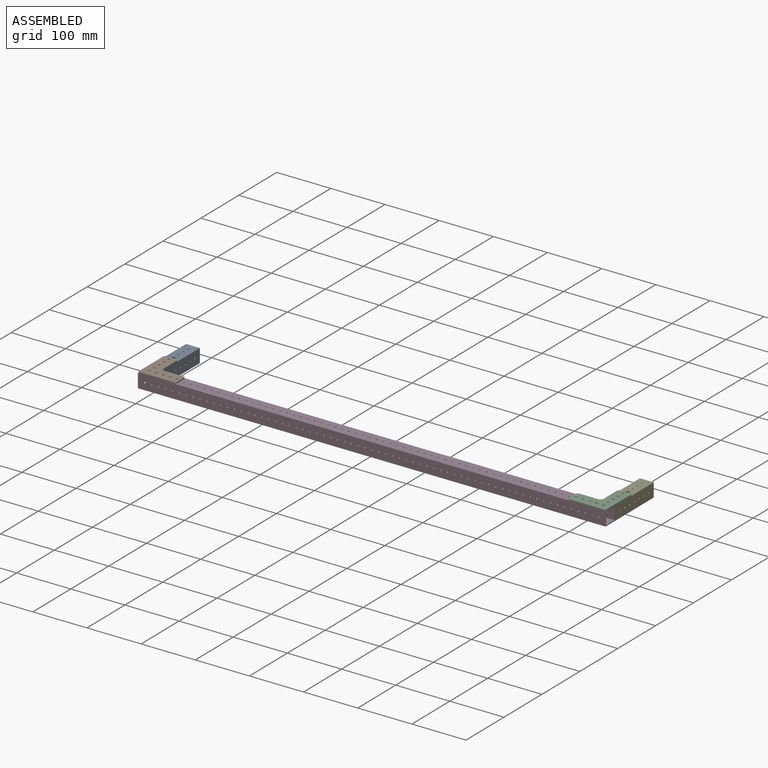
[diagram: assembled view]
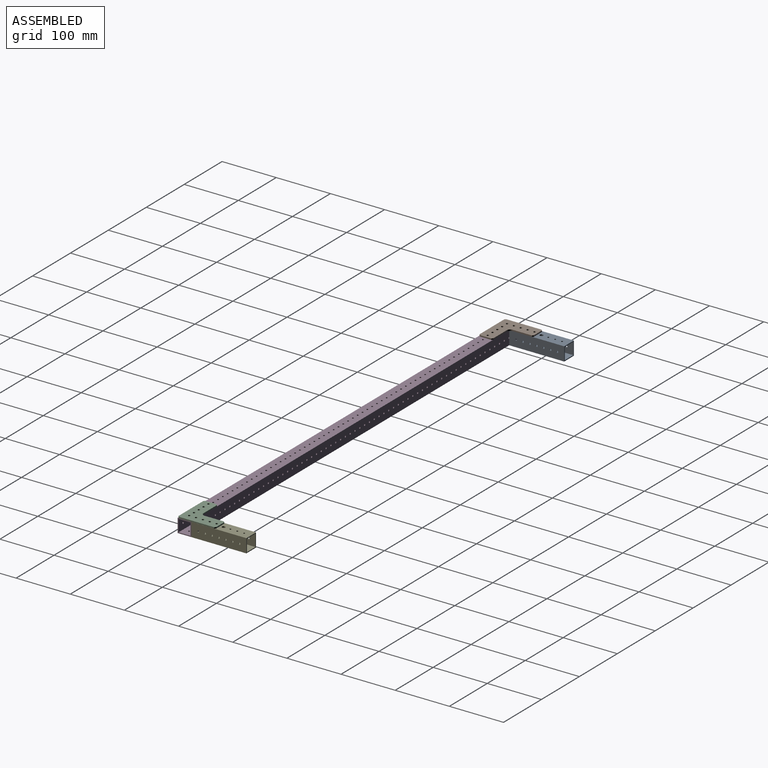
[diagram: assembled view, second angle]
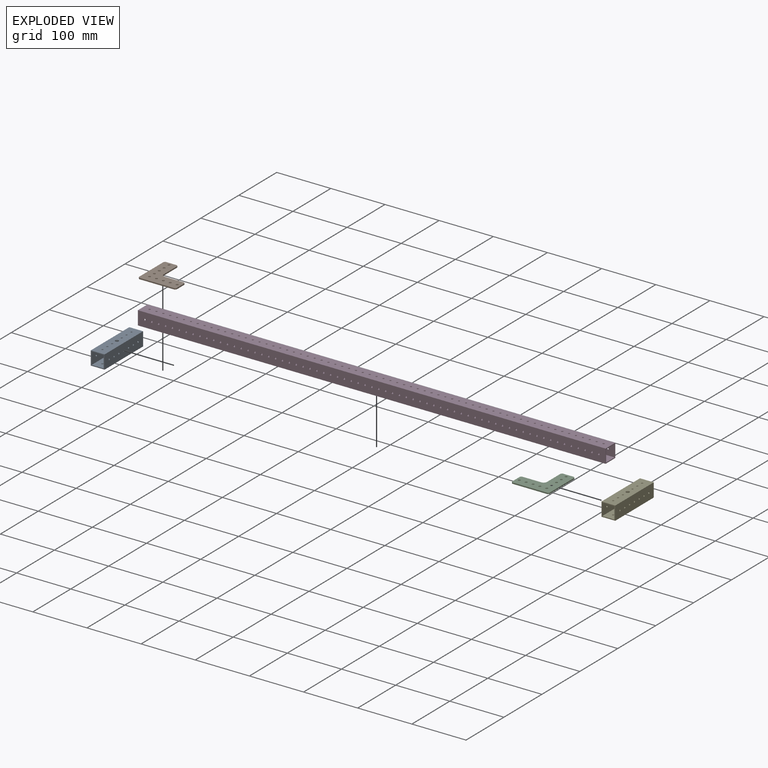
[diagram: exploded view]
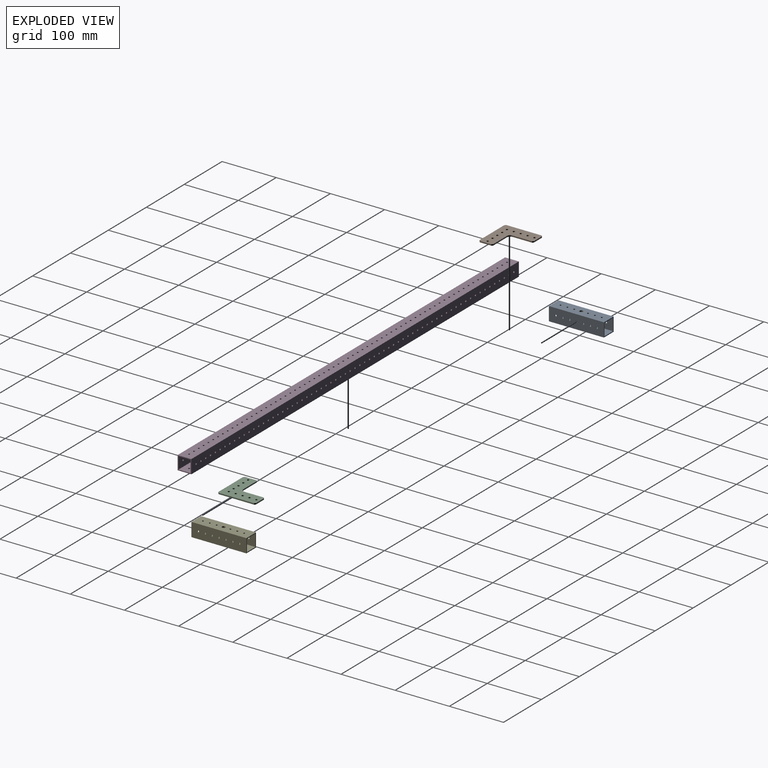
[diagram: exploded view, second angle]
ASSEMBLY  parts=5 mates=4
PART A: 38 faces, bbox 25.4x101.6x25.4 mm
  f0: cylinder r=1.59mm len=3.18mm, axis (1,0,0), area 15.8mm2, adj f23,f25
  f1: cylinder r=1.59mm len=3.18mm, axis (1,0,0), area 15.8mm2, adj f27,f29
  f2: cylinder r=1.59mm len=3.18mm, axis (1,0,0), area 15.8mm2, adj f23,f25
  f3: cylinder r=1.59mm len=3.18mm, axis (1,0,0), area 15.8mm2, adj f27,f29
  f4: cylinder r=1.59mm len=3.18mm, axis (1,0,0), area 15.8mm2, adj f23,f25
  f5: cylinder r=1.59mm len=3.18mm, axis (1,0,0), area 15.8mm2, adj f27,f29
  f6: cylinder r=1.59mm len=3.18mm, axis (1,0,0), area 15.8mm2, adj f23,f25
  f7: cylinder r=1.59mm len=3.18mm, axis (1,0,0), area 15.8mm2, adj f27,f29
  f8: cylinder r=1.59mm len=3.18mm, axis (1,0,0), area 15.8mm2, adj f23,f25
  f9: cylinder r=1.59mm len=3.18mm, axis (1,0,0), area 15.8mm2, adj f27,f29
  f10: cylinder r=1.59mm len=3.18mm, axis (1,0,0), area 15.8mm2, adj f23,f25
  f11: cylinder r=1.59mm len=3.18mm, axis (1,0,0), area 15.8mm2, adj f27,f29
  f12: cylinder r=1.59mm len=3.18mm, axis (0,0,1), area 15.8mm2, adj f24,f28
  f13: cylinder r=1.59mm len=3.18mm, axis (0,0,1), area 15.8mm2, adj f22,f26
  f14: cylinder r=1.59mm len=3.18mm, axis (0,0,1), area 15.8mm2, adj f24,f28
  f15: cylinder r=1.59mm len=3.18mm, axis (0,0,1), area 15.8mm2, adj f22,f26
  f16: cylinder r=1.59mm len=3.18mm, axis (0,0,1), area 15.8mm2, adj f24,f28
  f17: cylinder r=1.59mm len=3.18mm, axis (0,0,1), area 15.8mm2, adj f22,f26
  f18: cylinder r=1.59mm len=3.18mm, axis (0,0,1), area 15.8mm2, adj f24,f28
  f19: cylinder r=1.59mm len=3.18mm, axis (0,0,1), area 15.8mm2, adj f22,f26
  f20: cylinder r=1.59mm len=3.18mm, axis (0,0,1), area 15.8mm2, adj f24,f28
  f21: cylinder r=1.59mm len=3.18mm, axis (0,0,1), area 15.8mm2, adj f22,f26
  f22: plane 101.6x22.23mm, normal (0,0,-1), area 2178.9mm2, adj f13,f15,f17,f19,f21,f23,f29,f30
  f23: plane 101.6x22.23mm, normal (-1,0,0), area 2202.6mm2, adj f0,f2,f4,f6,f8,f10,f22,f24
  f24: plane 101.6x22.23mm, normal (0,0,1), area 2178.9mm2, adj f12,f14,f16,f18,f20,f23,f29,f30
  f25: plane 101.6x25.4mm, normal (1,0,0), area 2525.2mm2, adj f0,f2,f4,f6,f8,f10,f26,f28
  f26: plane 101.6x25.4mm, normal (0,0,1), area 2501.5mm2, adj f13,f15,f17,f19,f21,f25,f27,f30
  f27: plane 101.6x25.4mm, normal (-1,0,0), area 2525.2mm2, adj f1,f3,f5,f7,f9,f11,f26,f28
  f28: plane 101.6x25.4mm, normal (0,0,-1), area 2501.5mm2, adj f12,f14,f16,f18,f20,f25,f27,f30
  f29: plane 101.6x22.23mm, normal (1,0,0), area 2202.6mm2, adj f1,f3,f5,f7,f9,f11,f22,f24
  f30: plane 25.4x25.4mm, normal (0,-1,0), area 151.2mm2, adj f22,f23,f24,f25,f26,f27,f28,f29
  f31: plane 25.4x25.4mm, normal (0,1,0), area 151.2mm2, adj f22,f23,f24,f25,f26,f27,f28,f29
  f32: cylinder r=1.59mm len=3.18mm, axis (0,0,1), area 15.8mm2, adj f24,f28
  f33: cylinder r=1.59mm len=3.18mm, axis (0,0,1), area 15.8mm2, adj f22,f26
  f34: cylinder r=1.59mm len=3.18mm, axis (1,0,0), area 15.8mm2, adj f27,f29
  f35: cylinder r=1.59mm len=3.18mm, axis (1,0,0), area 15.8mm2, adj f23,f25
  f36: cylinder r=3.17mm len=6.35mm, axis (0,0,1), area 31.7mm2, adj f24,f28
  f37: cylinder r=3.17mm len=6.35mm, axis (0,0,1), area 31.7mm2, adj f22,f26
PART B: 23 faces, bbox 69.6x69.6x2.3 mm
  f0: cylinder r=2.07mm len=4.14mm, axis (0,0,-1), area 29.7mm2, adj f9,f10
  f1: cylinder r=2.07mm len=4.14mm, axis (0,0,-1), area 29.7mm2, adj f9,f10
  f2: cylinder r=2.07mm len=4.14mm, axis (0,0,-1), area 29.7mm2, adj f9,f10
  f3: cylinder r=2.07mm len=4.14mm, axis (0,0,-1), area 29.7mm2, adj f9,f10
  f4: cylinder r=2.07mm len=4.14mm, axis (0,0,-1), area 29.7mm2, adj f9,f10
  f5: cylinder r=2.07mm len=4.14mm, axis (0,0,-1), area 29.7mm2, adj f9,f10
  f6: cylinder r=2.07mm len=4.14mm, axis (0,0,-1), area 29.7mm2, adj f9,f10
  f7: cylinder r=2.07mm len=4.14mm, axis (0,0,-1), area 29.7mm2, adj f9,f10
  f8: cylinder r=2.07mm len=4.14mm, axis (0,0,-1), area 29.7mm2, adj f9,f10
  f9: plane 69.6x69.6mm, normal (0,0,1), area 2766.2mm2, adj f0,f1,f2,f3,f4,f5,f6,f7
  f10: plane 69.6x69.6mm, normal (0,0,-1), area 2766.2mm2, adj f0,f1,f2,f3,f4,f5,f6,f7
  f11: plane 65.28x2.29mm, normal (-1,0,0), area 149.2mm2, adj f9,f10,f19,f20
  f12: plane 21.08x2.29mm, normal (0,-1,0), area 48.2mm2, adj f9,f10,f20,f21
  f13: plane 21.08x2.29mm, normal (1,0,0), area 48.2mm2, adj f9,f10,f18,f22
  f14: plane 65.28x2.29mm, normal (0,1,0), area 149.2mm2, adj f9,f10,f18,f19
  f15: plane 35.69x2.29mm, normal (0,-1,0), area 81.6mm2, adj f9,f10,f17,f22
  f16: plane 35.69x2.29mm, normal (1,0,0), area 81.6mm2, adj f9,f10,f17,f21
  f17: cylinder r=6.35mm len=6.35mm, axis (0,0,1), area 22.8mm2, adj f9,f10,f15,f16
  f18: plane 2.29x2.16mm, normal (0.71,0.71,0), area 7mm2, adj f9,f10,f13,f14
  f19: plane 2.29x2.16mm, normal (-0.71,0.71,0), area 7mm2, adj f9,f10,f11,f14
  f20: plane 2.29x2.16mm, normal (-0.71,-0.71,0), area 7mm2, adj f9,f10,f11,f12
  f21: plane 2.29x2.16mm, normal (0.71,-0.71,0), area 7mm2, adj f9,f10,f12,f16
  f22: plane 2.29x2.16mm, normal (0.71,-0.71,0), area 7mm2, adj f9,f10,f13,f15
PART C: same geometry as B
PART D: 278 faces, bbox 25.4x863.6x25.4 mm
  f0: cylinder r=1.59mm len=3.18mm, axis (1,0,0), area 15.8mm2, adj f265,f267
  f1: cylinder r=1.59mm len=3.18mm, axis (1,0,0), area 15.8mm2, adj f269,f271
  f2: cylinder r=1.59mm len=3.18mm, axis (1,0,0), area 15.8mm2, adj f265,f267
  f3: cylinder r=1.59mm len=3.18mm, axis (1,0,0), area 15.8mm2, adj f269,f271
  f4: cylinder r=1.59mm len=3.18mm, axis (1,0,0), area 15.8mm2, adj f265,f267
  f5: cylinder r=1.59mm len=3.18mm, axis (1,0,0), area 15.8mm2, adj f269,f271
  f6: cylinder r=1.59mm len=3.18mm, axis (1,0,0), area 15.8mm2, adj f265,f267
  f7: cylinder r=1.59mm len=3.18mm, axis (1,0,0), area 15.8mm2, adj f269,f271
  f8: cylinder r=1.59mm len=3.18mm, axis (1,0,0), area 15.8mm2, adj f265,f267
  f9: cylinder r=1.59mm len=3.18mm, axis (1,0,0), area 15.8mm2, adj f269,f271
  f10: cylinder r=1.59mm len=3.18mm, axis (1,0,0), area 15.8mm2, adj f265,f267
  f11: cylinder r=1.59mm len=3.18mm, axis (1,0,0), area 15.8mm2, adj f269,f271
  f12: cylinder r=1.59mm len=3.18mm, axis (1,0,0), area 15.8mm2, adj f265,f267
  f13: cylinder r=1.59mm len=3.18mm, axis (1,0,0), area 15.8mm2, adj f269,f271
  f14: cylinder r=1.59mm len=3.18mm, axis (1,0,0), area 15.8mm2, adj f265,f267
  f15: cylinder r=1.59mm len=3.18mm, axis (1,0,0), area 15.8mm2, adj f269,f271
  f16: cylinder r=1.59mm len=3.18mm, axis (1,0,0), area 15.8mm2, adj f265,f267
  f17: cylinder r=1.59mm len=3.18mm, axis (1,0,0), area 15.8mm2, adj f269,f271
  f18: cylinder r=1.59mm len=3.18mm, axis (1,0,0), area 15.8mm2, adj f265,f267
  f19: cylinder r=1.59mm len=3.18mm, axis (1,0,0), area 15.8mm2, adj f269,f271
  f20: cylinder r=1.59mm len=3.18mm, axis (1,0,0), area 15.8mm2, adj f265,f267
  f21: cylinder r=1.59mm len=3.18mm, axis (1,0,0), area 15.8mm2, adj f269,f271
  f22: cylinder r=1.59mm len=3.18mm, axis (1,0,0), area 15.8mm2, adj f265,f267
  f23: cylinder r=1.59mm len=3.18mm, axis (1,0,0), area 15.8mm2, adj f269,f271
  f24: cylinder r=1.59mm len=3.18mm, axis (1,0,0), area 15.8mm2, adj f265,f267
  f25: cylinder r=1.59mm len=3.18mm, axis (1,0,0), area 15.8mm2, adj f269,f271
  f26: cylinder r=1.59mm len=3.18mm, axis (1,0,0), area 15.8mm2, adj f265,f267
  f27: cylinder r=1.59mm len=3.18mm, axis (1,0,0), area 15.8mm2, adj f269,f271
  f28: cylinder r=1.59mm len=3.18mm, axis (1,0,0), area 15.8mm2, adj f265,f267
  f29: cylinder r=1.59mm len=3.18mm, axis (1,0,0), area 15.8mm2, adj f269,f271
  f30: cylinder r=1.59mm len=3.18mm, axis (1,0,0), area 15.8mm2, adj f265,f267
  f31: cylinder r=1.59mm len=3.18mm, axis (1,0,0), area 15.8mm2, adj f269,f271
  f32: cylinder r=1.59mm len=3.18mm, axis (1,0,0), area 15.8mm2, adj f265,f267
  f33: cylinder r=1.59mm len=3.18mm, axis (1,0,0), area 15.8mm2, adj f269,f271
  f34: cylinder r=1.59mm len=3.18mm, axis (1,0,0), area 15.8mm2, adj f265,f267
  f35: cylinder r=1.59mm len=3.18mm, axis (1,0,0), area 15.8mm2, adj f269,f271
  f36: cylinder r=1.59mm len=3.18mm, axis (1,0,0), area 15.8mm2, adj f265,f267
  f37: cylinder r=1.59mm len=3.18mm, axis (1,0,0), area 15.8mm2, adj f269,f271
  f38: cylinder r=1.59mm len=3.18mm, axis (1,0,0), area 15.8mm2, adj f265,f267
  f39: cylinder r=1.59mm len=3.18mm, axis (1,0,0), area 15.8mm2, adj f269,f271
  f40: cylinder r=1.59mm len=3.18mm, axis (1,0,0), area 15.8mm2, adj f265,f267
  f41: cylinder r=1.59mm len=3.18mm, axis (1,0,0), area 15.8mm2, adj f269,f271
  f42: cylinder r=1.59mm len=3.18mm, axis (1,0,0), area 15.8mm2, adj f265,f267
  f43: cylinder r=1.59mm len=3.18mm, axis (1,0,0), area 15.8mm2, adj f269,f271
  f44: cylinder r=1.59mm len=3.18mm, axis (1,0,0), area 15.8mm2, adj f265,f267
  f45: cylinder r=1.59mm len=3.18mm, axis (1,0,0), area 15.8mm2, adj f269,f271
  f46: cylinder r=1.59mm len=3.18mm, axis (1,0,0), area 15.8mm2, adj f265,f267
  f47: cylinder r=1.59mm len=3.18mm, axis (1,0,0), area 15.8mm2, adj f269,f271
  f48: cylinder r=1.59mm len=3.18mm, axis (1,0,0), area 15.8mm2, adj f265,f267
  f49: cylinder r=1.59mm len=3.18mm, axis (1,0,0), area 15.8mm2, adj f269,f271
  f50: cylinder r=1.59mm len=3.18mm, axis (1,0,0), area 15.8mm2, adj f265,f267
  f51: cylinder r=1.59mm len=3.18mm, axis (1,0,0), area 15.8mm2, adj f269,f271
  f52: cylinder r=1.59mm len=3.18mm, axis (1,0,0), area 15.8mm2, adj f265,f267
  f53: cylinder r=1.59mm len=3.18mm, axis (1,0,0), area 15.8mm2, adj f269,f271
  f54: cylinder r=1.59mm len=3.18mm, axis (1,0,0), area 15.8mm2, adj f265,f267
  f55: cylinder r=1.59mm len=3.18mm, axis (1,0,0), area 15.8mm2, adj f269,f271
  f56: cylinder r=1.59mm len=3.18mm, axis (1,0,0), area 15.8mm2, adj f265,f267
  f57: cylinder r=1.59mm len=3.18mm, axis (1,0,0), area 15.8mm2, adj f269,f271
  f58: cylinder r=1.59mm len=3.18mm, axis (1,0,0), area 15.8mm2, adj f265,f267
  f59: cylinder r=1.59mm len=3.18mm, axis (1,0,0), area 15.8mm2, adj f269,f271
  f60: cylinder r=1.59mm len=3.18mm, axis (1,0,0), area 15.8mm2, adj f265,f267
  f61: cylinder r=1.59mm len=3.18mm, axis (1,0,0), area 15.8mm2, adj f269,f271
  f62: cylinder r=1.59mm len=3.18mm, axis (1,0,0), area 15.8mm2, adj f265,f267
  f63: cylinder r=1.59mm len=3.18mm, axis (1,0,0), area 15.8mm2, adj f269,f271
  f64: cylinder r=1.59mm len=3.18mm, axis (1,0,0), area 15.8mm2, adj f265,f267
  f65: cylinder r=1.59mm len=3.18mm, axis (1,0,0), area 15.8mm2, adj f269,f271
  f66: cylinder r=1.59mm len=3.18mm, axis (1,0,0), area 15.8mm2, adj f265,f267
  f67: cylinder r=1.59mm len=3.18mm, axis (1,0,0), area 15.8mm2, adj f269,f271
  f68: cylinder r=1.59mm len=3.18mm, axis (1,0,0), area 15.8mm2, adj f265,f267
  f69: cylinder r=1.59mm len=3.18mm, axis (1,0,0), area 15.8mm2, adj f269,f271
  f70: cylinder r=1.59mm len=3.18mm, axis (1,0,0), area 15.8mm2, adj f265,f267
  f71: cylinder r=1.59mm len=3.18mm, axis (1,0,0), area 15.8mm2, adj f269,f271
  f72: cylinder r=1.59mm len=3.18mm, axis (1,0,0), area 15.8mm2, adj f265,f267
  f73: cylinder r=1.59mm len=3.18mm, axis (1,0,0), area 15.8mm2, adj f269,f271
  f74: cylinder r=1.59mm len=3.18mm, axis (1,0,0), area 15.8mm2, adj f265,f267
  f75: cylinder r=1.59mm len=3.18mm, axis (1,0,0), area 15.8mm2, adj f269,f271
  f76: cylinder r=1.59mm len=3.18mm, axis (1,0,0), area 15.8mm2, adj f265,f267
  f77: cylinder r=1.59mm len=3.18mm, axis (1,0,0), area 15.8mm2, adj f269,f271
  f78: cylinder r=1.59mm len=3.18mm, axis (1,0,0), area 15.8mm2, adj f265,f267
  f79: cylinder r=1.59mm len=3.18mm, axis (1,0,0), area 15.8mm2, adj f269,f271
  f80: cylinder r=1.59mm len=3.18mm, axis (1,0,0), area 15.8mm2, adj f265,f267
  f81: cylinder r=1.59mm len=3.18mm, axis (1,0,0), area 15.8mm2, adj f269,f271
  f82: cylinder r=1.59mm len=3.18mm, axis (1,0,0), area 15.8mm2, adj f265,f267
  f83: cylinder r=1.59mm len=3.18mm, axis (1,0,0), area 15.8mm2, adj f269,f271
  f84: cylinder r=1.59mm len=3.18mm, axis (1,0,0), area 15.8mm2, adj f265,f267
  f85: cylinder r=1.59mm len=3.18mm, axis (1,0,0), area 15.8mm2, adj f269,f271
  f86: cylinder r=1.59mm len=3.18mm, axis (1,0,0), area 15.8mm2, adj f265,f267
  f87: cylinder r=1.59mm len=3.18mm, axis (1,0,0), area 15.8mm2, adj f269,f271
  f88: cylinder r=1.59mm len=3.18mm, axis (1,0,0), area 15.8mm2, adj f265,f267
  f89: cylinder r=1.59mm len=3.18mm, axis (1,0,0), area 15.8mm2, adj f269,f271
  f90: cylinder r=1.59mm len=3.18mm, axis (1,0,0), area 15.8mm2, adj f265,f267
  f91: cylinder r=1.59mm len=3.18mm, axis (1,0,0), area 15.8mm2, adj f269,f271
  f92: cylinder r=1.59mm len=3.18mm, axis (1,0,0), area 15.8mm2, adj f265,f267
  f93: cylinder r=1.59mm len=3.18mm, axis (1,0,0), area 15.8mm2, adj f269,f271
  f94: cylinder r=1.59mm len=3.18mm, axis (1,0,0), area 15.8mm2, adj f265,f267
  f95: cylinder r=1.59mm len=3.18mm, axis (1,0,0), area 15.8mm2, adj f269,f271
  f96: cylinder r=1.59mm len=3.18mm, axis (1,0,0), area 15.8mm2, adj f265,f267
  f97: cylinder r=1.59mm len=3.18mm, axis (1,0,0), area 15.8mm2, adj f269,f271
  f98: cylinder r=1.59mm len=3.18mm, axis (1,0,0), area 15.8mm2, adj f265,f267
  f99: cylinder r=1.59mm len=3.18mm, axis (1,0,0), area 15.8mm2, adj f269,f271
  f100: cylinder r=1.59mm len=3.18mm, axis (1,0,0), area 15.8mm2, adj f265,f267
  f101: cylinder r=1.59mm len=3.18mm, axis (1,0,0), area 15.8mm2, adj f269,f271
  f102: cylinder r=1.59mm len=3.18mm, axis (1,0,0), area 15.8mm2, adj f265,f267
  f103: cylinder r=1.59mm len=3.18mm, axis (1,0,0), area 15.8mm2, adj f269,f271
  f104: cylinder r=1.59mm len=3.18mm, axis (1,0,0), area 15.8mm2, adj f265,f267
  f105: cylinder r=1.59mm len=3.18mm, axis (1,0,0), area 15.8mm2, adj f269,f271
  f106: cylinder r=1.59mm len=3.18mm, axis (1,0,0), area 15.8mm2, adj f265,f267
  f107: cylinder r=1.59mm len=3.18mm, axis (1,0,0), area 15.8mm2, adj f269,f271
  f108: cylinder r=1.59mm len=3.18mm, axis (1,0,0), area 15.8mm2, adj f265,f267
  f109: cylinder r=1.59mm len=3.18mm, axis (1,0,0), area 15.8mm2, adj f269,f271
  f110: cylinder r=1.59mm len=3.18mm, axis (1,0,0), area 15.8mm2, adj f265,f267
  f111: cylinder r=1.59mm len=3.18mm, axis (1,0,0), area 15.8mm2, adj f269,f271
  f112: cylinder r=1.59mm len=3.18mm, axis (1,0,0), area 15.8mm2, adj f265,f267
  f113: cylinder r=1.59mm len=3.18mm, axis (1,0,0), area 15.8mm2, adj f269,f271
  f114: cylinder r=1.59mm len=3.18mm, axis (1,0,0), area 15.8mm2, adj f265,f267
  f115: cylinder r=1.59mm len=3.18mm, axis (1,0,0), area 15.8mm2, adj f269,f271
  f116: cylinder r=1.59mm len=3.18mm, axis (1,0,0), area 15.8mm2, adj f265,f267
  f117: cylinder r=1.59mm len=3.18mm, axis (1,0,0), area 15.8mm2, adj f269,f271
  f118: cylinder r=1.59mm len=3.18mm, axis (1,0,0), area 15.8mm2, adj f265,f267
  f119: cylinder r=1.59mm len=3.18mm, axis (1,0,0), area 15.8mm2, adj f269,f271
  f120: cylinder r=1.59mm len=3.18mm, axis (1,0,0), area 15.8mm2, adj f265,f267
  f121: cylinder r=1.59mm len=3.18mm, axis (1,0,0), area 15.8mm2, adj f269,f271
  f122: cylinder r=1.59mm len=3.18mm, axis (1,0,0), area 15.8mm2, adj f265,f267
  f123: cylinder r=1.59mm len=3.18mm, axis (1,0,0), area 15.8mm2, adj f269,f271
  f124: cylinder r=1.59mm len=3.18mm, axis (1,0,0), area 15.8mm2, adj f265,f267
  f125: cylinder r=1.59mm len=3.18mm, axis (1,0,0), area 15.8mm2, adj f269,f271
  f126: cylinder r=1.59mm len=3.18mm, axis (1,0,0), area 15.8mm2, adj f265,f267
  f127: cylinder r=1.59mm len=3.18mm, axis (1,0,0), area 15.8mm2, adj f269,f271
  f128: cylinder r=1.59mm len=3.18mm, axis (1,0,0), area 15.8mm2, adj f265,f267
  f129: cylinder r=1.59mm len=3.18mm, axis (1,0,0), area 15.8mm2, adj f269,f271
  f130: cylinder r=1.59mm len=3.18mm, axis (1,0,0), area 15.8mm2, adj f265,f267
  f131: cylinder r=1.59mm len=3.18mm, axis (1,0,0), area 15.8mm2, adj f269,f271
  f132: cylinder r=1.59mm len=3.18mm, axis (0,0,1), area 15.8mm2, adj f266,f270
  f133: cylinder r=1.59mm len=3.18mm, axis (0,0,1), area 15.8mm2, adj f264,f268
  f134: cylinder r=1.59mm len=3.18mm, axis (0,0,1), area 15.8mm2, adj f266,f270
  f135: cylinder r=1.59mm len=3.18mm, axis (0,0,1), area 15.8mm2, adj f264,f268
  f136: cylinder r=1.59mm len=3.18mm, axis (0,0,1), area 15.8mm2, adj f266,f270
  f137: cylinder r=1.59mm len=3.18mm, axis (0,0,1), area 15.8mm2, adj f264,f268
  f138: cylinder r=1.59mm len=3.18mm, axis (0,0,1), area 15.8mm2, adj f266,f270
  f139: cylinder r=1.59mm len=3.18mm, axis (0,0,1), area 15.8mm2, adj f264,f268
  f140: cylinder r=1.59mm len=3.18mm, axis (0,0,1), area 15.8mm2, adj f266,f270
  f141: cylinder r=1.59mm len=3.18mm, axis (0,0,1), area 15.8mm2, adj f264,f268
  f142: cylinder r=1.59mm len=3.18mm, axis (0,0,1), area 15.8mm2, adj f266,f270
  f143: cylinder r=1.59mm len=3.18mm, axis (0,0,1), area 15.8mm2, adj f264,f268
  f144: cylinder r=1.59mm len=3.18mm, axis (0,0,1), area 15.8mm2, adj f266,f270
  f145: cylinder r=1.59mm len=3.18mm, axis (0,0,1), area 15.8mm2, adj f264,f268
  f146: cylinder r=1.59mm len=3.18mm, axis (0,0,1), area 15.8mm2, adj f266,f270
  f147: cylinder r=1.59mm len=3.18mm, axis (0,0,1), area 15.8mm2, adj f264,f268
  f148: cylinder r=1.59mm len=3.18mm, axis (0,0,1), area 15.8mm2, adj f266,f270
  f149: cylinder r=1.59mm len=3.18mm, axis (0,0,1), area 15.8mm2, adj f264,f268
  f150: cylinder r=1.59mm len=3.18mm, axis (0,0,1), area 15.8mm2, adj f266,f270
  f151: cylinder r=1.59mm len=3.18mm, axis (0,0,1), area 15.8mm2, adj f264,f268
  f152: cylinder r=1.59mm len=3.18mm, axis (0,0,1), area 15.8mm2, adj f266,f270
  f153: cylinder r=1.59mm len=3.18mm, axis (0,0,1), area 15.8mm2, adj f264,f268
  f154: cylinder r=1.59mm len=3.18mm, axis (0,0,1), area 15.8mm2, adj f266,f270
  f155: cylinder r=1.59mm len=3.18mm, axis (0,0,1), area 15.8mm2, adj f264,f268
  f156: cylinder r=1.59mm len=3.18mm, axis (0,0,1), area 15.8mm2, adj f266,f270
  f157: cylinder r=1.59mm len=3.18mm, axis (0,0,1), area 15.8mm2, adj f264,f268
  f158: cylinder r=1.59mm len=3.18mm, axis (0,0,1), area 15.8mm2, adj f266,f270
  f159: cylinder r=1.59mm len=3.18mm, axis (0,0,1), area 15.8mm2, adj f264,f268
  f160: cylinder r=1.59mm len=3.18mm, axis (0,0,1), area 15.8mm2, adj f266,f270
  f161: cylinder r=1.59mm len=3.18mm, axis (0,0,1), area 15.8mm2, adj f264,f268
  f162: cylinder r=1.59mm len=3.18mm, axis (0,0,1), area 15.8mm2, adj f266,f270
  f163: cylinder r=1.59mm len=3.18mm, axis (0,0,1), area 15.8mm2, adj f264,f268
  f164: cylinder r=1.59mm len=3.18mm, axis (0,0,1), area 15.8mm2, adj f266,f270
  f165: cylinder r=1.59mm len=3.18mm, axis (0,0,1), area 15.8mm2, adj f264,f268
  f166: cylinder r=1.59mm len=3.18mm, axis (0,0,1), area 15.8mm2, adj f266,f270
  f167: cylinder r=1.59mm len=3.18mm, axis (0,0,1), area 15.8mm2, adj f264,f268
  f168: cylinder r=1.59mm len=3.18mm, axis (0,0,1), area 15.8mm2, adj f266,f270
  f169: cylinder r=1.59mm len=3.18mm, axis (0,0,1), area 15.8mm2, adj f264,f268
  f170: cylinder r=1.59mm len=3.18mm, axis (0,0,1), area 15.8mm2, adj f266,f270
  f171: cylinder r=1.59mm len=3.18mm, axis (0,0,1), area 15.8mm2, adj f264,f268
  f172: cylinder r=1.59mm len=3.18mm, axis (0,0,1), area 15.8mm2, adj f266,f270
  f173: cylinder r=1.59mm len=3.18mm, axis (0,0,1), area 15.8mm2, adj f264,f268
  f174: cylinder r=1.59mm len=3.18mm, axis (0,0,1), area 15.8mm2, adj f266,f270
  f175: cylinder r=1.59mm len=3.18mm, axis (0,0,1), area 15.8mm2, adj f264,f268
  f176: cylinder r=1.59mm len=3.18mm, axis (0,0,1), area 15.8mm2, adj f266,f270
  f177: cylinder r=1.59mm len=3.18mm, axis (0,0,1), area 15.8mm2, adj f264,f268
  f178: cylinder r=1.59mm len=3.18mm, axis (0,0,1), area 15.8mm2, adj f266,f270
  f179: cylinder r=1.59mm len=3.18mm, axis (0,0,1), area 15.8mm2, adj f264,f268
  f180: cylinder r=1.59mm len=3.18mm, axis (0,0,1), area 15.8mm2, adj f266,f270
  f181: cylinder r=1.59mm len=3.18mm, axis (0,0,1), area 15.8mm2, adj f264,f268
  f182: cylinder r=1.59mm len=3.18mm, axis (0,0,1), area 15.8mm2, adj f266,f270
  f183: cylinder r=1.59mm len=3.18mm, axis (0,0,1), area 15.8mm2, adj f264,f268
  f184: cylinder r=1.59mm len=3.18mm, axis (0,0,1), area 15.8mm2, adj f266,f270
  f185: cylinder r=1.59mm len=3.18mm, axis (0,0,1), area 15.8mm2, adj f264,f268
  f186: cylinder r=1.59mm len=3.18mm, axis (0,0,1), area 15.8mm2, adj f266,f270
  f187: cylinder r=1.59mm len=3.18mm, axis (0,0,1), area 15.8mm2, adj f264,f268
  f188: cylinder r=1.59mm len=3.18mm, axis (0,0,1), area 15.8mm2, adj f266,f270
  f189: cylinder r=1.59mm len=3.18mm, axis (0,0,1), area 15.8mm2, adj f264,f268
  f190: cylinder r=1.59mm len=3.18mm, axis (0,0,1), area 15.8mm2, adj f266,f270
  f191: cylinder r=1.59mm len=3.18mm, axis (0,0,1), area 15.8mm2, adj f264,f268
  f192: cylinder r=1.59mm len=3.18mm, axis (0,0,1), area 15.8mm2, adj f266,f270
  f193: cylinder r=1.59mm len=3.18mm, axis (0,0,1), area 15.8mm2, adj f264,f268
  f194: cylinder r=1.59mm len=3.18mm, axis (0,0,1), area 15.8mm2, adj f266,f270
  f195: cylinder r=1.59mm len=3.18mm, axis (0,0,1), area 15.8mm2, adj f264,f268
  f196: cylinder r=1.59mm len=3.18mm, axis (0,0,1), area 15.8mm2, adj f266,f270
  f197: cylinder r=1.59mm len=3.18mm, axis (0,0,1), area 15.8mm2, adj f264,f268
  f198: cylinder r=1.59mm len=3.18mm, axis (0,0,1), area 15.8mm2, adj f266,f270
  f199: cylinder r=1.59mm len=3.18mm, axis (0,0,1), area 15.8mm2, adj f264,f268
  f200: cylinder r=1.59mm len=3.18mm, axis (0,0,1), area 15.8mm2, adj f266,f270
  f201: cylinder r=1.59mm len=3.18mm, axis (0,0,1), area 15.8mm2, adj f264,f268
  f202: cylinder r=1.59mm len=3.18mm, axis (0,0,1), area 15.8mm2, adj f266,f270
  f203: cylinder r=1.59mm len=3.18mm, axis (0,0,1), area 15.8mm2, adj f264,f268
  f204: cylinder r=1.59mm len=3.18mm, axis (0,0,1), area 15.8mm2, adj f266,f270
  f205: cylinder r=1.59mm len=3.18mm, axis (0,0,1), area 15.8mm2, adj f264,f268
  f206: cylinder r=1.59mm len=3.18mm, axis (0,0,1), area 15.8mm2, adj f266,f270
  f207: cylinder r=1.59mm len=3.18mm, axis (0,0,1), area 15.8mm2, adj f264,f268
  f208: cylinder r=1.59mm len=3.18mm, axis (0,0,1), area 15.8mm2, adj f266,f270
  f209: cylinder r=1.59mm len=3.18mm, axis (0,0,1), area 15.8mm2, adj f264,f268
  f210: cylinder r=1.59mm len=3.18mm, axis (0,0,1), area 15.8mm2, adj f266,f270
  f211: cylinder r=1.59mm len=3.18mm, axis (0,0,1), area 15.8mm2, adj f264,f268
  f212: cylinder r=1.59mm len=3.18mm, axis (0,0,1), area 15.8mm2, adj f266,f270
  f213: cylinder r=1.59mm len=3.18mm, axis (0,0,1), area 15.8mm2, adj f264,f268
  f214: cylinder r=1.59mm len=3.18mm, axis (0,0,1), area 15.8mm2, adj f266,f270
  f215: cylinder r=1.59mm len=3.18mm, axis (0,0,1), area 15.8mm2, adj f264,f268
  f216: cylinder r=1.59mm len=3.18mm, axis (0,0,1), area 15.8mm2, adj f266,f270
  f217: cylinder r=1.59mm len=3.18mm, axis (0,0,1), area 15.8mm2, adj f264,f268
  f218: cylinder r=1.59mm len=3.18mm, axis (0,0,1), area 15.8mm2, adj f266,f270
  f219: cylinder r=1.59mm len=3.18mm, axis (0,0,1), area 15.8mm2, adj f264,f268
  f220: cylinder r=1.59mm len=3.18mm, axis (0,0,1), area 15.8mm2, adj f266,f270
  f221: cylinder r=1.59mm len=3.18mm, axis (0,0,1), area 15.8mm2, adj f264,f268
  f222: cylinder r=1.59mm len=3.18mm, axis (0,0,1), area 15.8mm2, adj f266,f270
  f223: cylinder r=1.59mm len=3.18mm, axis (0,0,1), area 15.8mm2, adj f264,f268
  f224: cylinder r=1.59mm len=3.18mm, axis (0,0,1), area 15.8mm2, adj f266,f270
  f225: cylinder r=1.59mm len=3.18mm, axis (0,0,1), area 15.8mm2, adj f264,f268
  f226: cylinder r=1.59mm len=3.18mm, axis (0,0,1), area 15.8mm2, adj f266,f270
  f227: cylinder r=1.59mm len=3.18mm, axis (0,0,1), area 15.8mm2, adj f264,f268
  f228: cylinder r=1.59mm len=3.18mm, axis (0,0,1), area 15.8mm2, adj f266,f270
  f229: cylinder r=1.59mm len=3.18mm, axis (0,0,1), area 15.8mm2, adj f264,f268
  f230: cylinder r=1.59mm len=3.18mm, axis (0,0,1), area 15.8mm2, adj f266,f270
  f231: cylinder r=1.59mm len=3.18mm, axis (0,0,1), area 15.8mm2, adj f264,f268
  f232: cylinder r=1.59mm len=3.18mm, axis (0,0,1), area 15.8mm2, adj f266,f270
  f233: cylinder r=1.59mm len=3.18mm, axis (0,0,1), area 15.8mm2, adj f264,f268
  f234: cylinder r=1.59mm len=3.18mm, axis (0,0,1), area 15.8mm2, adj f266,f270
  f235: cylinder r=1.59mm len=3.18mm, axis (0,0,1), area 15.8mm2, adj f264,f268
  f236: cylinder r=1.59mm len=3.18mm, axis (0,0,1), area 15.8mm2, adj f266,f270
  f237: cylinder r=1.59mm len=3.18mm, axis (0,0,1), area 15.8mm2, adj f264,f268
  f238: cylinder r=1.59mm len=3.18mm, axis (0,0,1), area 15.8mm2, adj f266,f270
  f239: cylinder r=1.59mm len=3.18mm, axis (0,0,1), area 15.8mm2, adj f264,f268
  f240: cylinder r=1.59mm len=3.18mm, axis (0,0,1), area 15.8mm2, adj f266,f270
  f241: cylinder r=1.59mm len=3.18mm, axis (0,0,1), area 15.8mm2, adj f264,f268
  f242: cylinder r=1.59mm len=3.18mm, axis (0,0,1), area 15.8mm2, adj f266,f270
  f243: cylinder r=1.59mm len=3.18mm, axis (0,0,1), area 15.8mm2, adj f264,f268
  f244: cylinder r=1.59mm len=3.18mm, axis (0,0,1), area 15.8mm2, adj f266,f270
  f245: cylinder r=1.59mm len=3.18mm, axis (0,0,1), area 15.8mm2, adj f264,f268
  f246: cylinder r=1.59mm len=3.18mm, axis (0,0,1), area 15.8mm2, adj f266,f270
  f247: cylinder r=1.59mm len=3.18mm, axis (0,0,1), area 15.8mm2, adj f264,f268
  f248: cylinder r=1.59mm len=3.18mm, axis (0,0,1), area 15.8mm2, adj f266,f270
  f249: cylinder r=1.59mm len=3.18mm, axis (0,0,1), area 15.8mm2, adj f264,f268
  f250: cylinder r=1.59mm len=3.18mm, axis (0,0,1), area 15.8mm2, adj f266,f270
  f251: cylinder r=1.59mm len=3.18mm, axis (0,0,1), area 15.8mm2, adj f264,f268
  f252: cylinder r=1.59mm len=3.18mm, axis (0,0,1), area 15.8mm2, adj f266,f270
  f253: cylinder r=1.59mm len=3.18mm, axis (0,0,1), area 15.8mm2, adj f264,f268
  f254: cylinder r=1.59mm len=3.18mm, axis (0,0,1), area 15.8mm2, adj f266,f270
  f255: cylinder r=1.59mm len=3.18mm, axis (0,0,1), area 15.8mm2, adj f264,f268
  f256: cylinder r=1.59mm len=3.18mm, axis (0,0,1), area 15.8mm2, adj f266,f270
  f257: cylinder r=1.59mm len=3.18mm, axis (0,0,1), area 15.8mm2, adj f264,f268
  f258: cylinder r=1.59mm len=3.18mm, axis (0,0,1), area 15.8mm2, adj f266,f270
  f259: cylinder r=1.59mm len=3.18mm, axis (0,0,1), area 15.8mm2, adj f264,f268
  f260: cylinder r=1.59mm len=3.18mm, axis (0,0,1), area 15.8mm2, adj f266,f270
  f261: cylinder r=1.59mm len=3.18mm, axis (0,0,1), area 15.8mm2, adj f264,f268
  f262: cylinder r=1.59mm len=3.18mm, axis (0,0,1), area 15.8mm2, adj f266,f270
  f263: cylinder r=1.59mm len=3.18mm, axis (0,0,1), area 15.8mm2, adj f264,f268
  f264: plane 863.6x22.23mm, normal (0,0,-1), area 18663.1mm2, adj f133,f135,f137,f139,f141,f143,f145,f147
  f265: plane 863.6x22.23mm, normal (-1,0,0), area 18663.1mm2, adj f0,f2,f4,f6,f8,f10,f12,f14
  f266: plane 863.6x22.23mm, normal (0,0,1), area 18663.1mm2, adj f132,f134,f136,f138,f140,f142,f144,f146
  f267: plane 863.6x25.4mm, normal (1,0,0), area 21405mm2, adj f0,f2,f4,f6,f8,f10,f12,f14
  f268: plane 863.6x25.4mm, normal (0,0,1), area 21405mm2, adj f133,f135,f137,f139,f141,f143,f145,f147
  f269: plane 863.6x25.4mm, normal (-1,0,0), area 21405mm2, adj f1,f3,f5,f7,f9,f11,f13,f15
  f270: plane 863.6x25.4mm, normal (0,0,-1), area 21405mm2, adj f132,f134,f136,f138,f140,f142,f144,f146
  f271: plane 863.6x22.23mm, normal (1,0,0), area 18663.1mm2, adj f1,f3,f5,f7,f9,f11,f13,f15
  f272: plane 25.4x25.4mm, normal (0,-1,0), area 151.2mm2, adj f264,f265,f266,f267,f268,f269,f270,f271
  f273: plane 25.4x25.4mm, normal (0,1,0), area 151.2mm2, adj f264,f265,f266,f267,f268,f269,f270,f271
  f274: cylinder r=1.59mm len=3.18mm, axis (0,0,1), area 15.8mm2, adj f266,f270
  f275: cylinder r=1.59mm len=3.18mm, axis (0,0,1), area 15.8mm2, adj f264,f268
  f276: cylinder r=1.59mm len=3.18mm, axis (1,0,0), area 15.8mm2, adj f269,f271
  f277: cylinder r=1.59mm len=3.18mm, axis (1,0,0), area 15.8mm2, adj f265,f267
PART E: same geometry as A
PLACE A at identity fixed
PLACE B rot(axis=(1,0,0),180deg) t=(0,-63.5,14.99)mm
PLACE C rot(axis=(0.71,0.71,0),180deg) t=(838.2,-63.5,14.99)mm
PLACE D rot(axis=(0,0,1),90deg) t=(419.1,-63.5,0)mm
PLACE E t=(838.2,0,0)mm
MATE fastened E.f25 <-> D.f272  axis (-1,0,0) through (850.9,-50.8,12.7)mm
MATE fastened C.f1 <-> D.f256  axis (0,0,-1) through (787.4,-63.5,12.7)mm
MATE fastened B.f1 <-> A.f18  axis (0,0,-1) through (0,-12.7,12.7)mm
MATE fastened A.f27 <-> D.f273  axis (-1,0,0) through (-12.7,-50.8,12.7)mm
